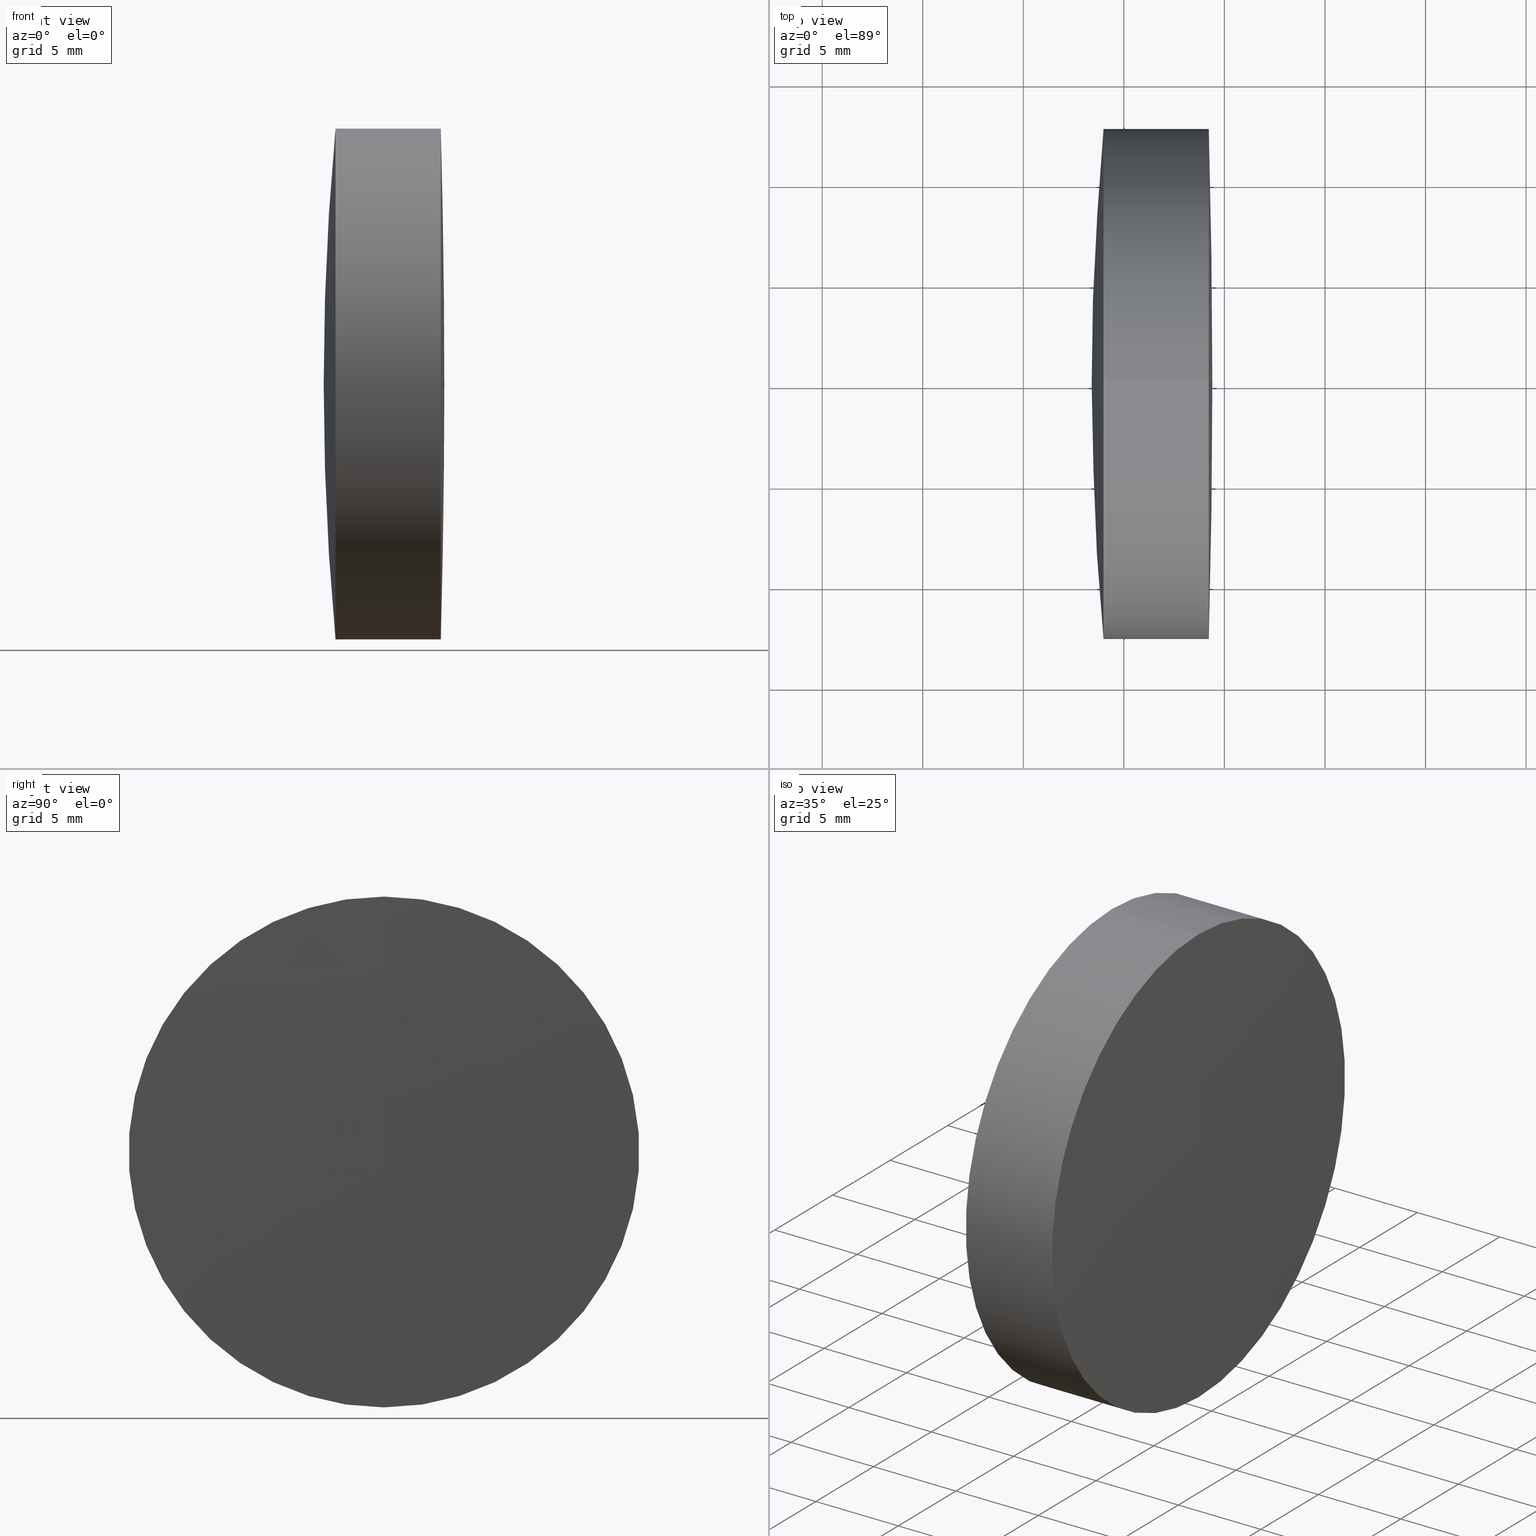
[diagram: canonical four-view strip — front | top / right | iso, engineering-drawing reading convention]
A machine part, canonical four-view strip (front | top / right | iso — engineering-drawing reading convention). The complete STEP part file that produces these views, byte-faithful:
ISO-10303-21;
HEADER;
FILE_DESCRIPTION (( 'STEP AP214' ),
    '1' );
FILE_NAME ('145062.STEP',
    '2019-05-14T05:37:43',
    ( 'user' ),
    ( '΢���й�' ),
    'SwSTEP 2.0',
    'SolidWorks 2016',
    '' );
FILE_SCHEMA (( 'AUTOMOTIVE_DESIGN' ));
ENDSEC;

DATA;
#1 = DIRECTION ( 'NONE',  ( 0.0000000000000000000, 0.0000000000000000000, 1.000000000000000000 ) ) ;
#2 = AXIS2_PLACEMENT_3D ( 'NONE', #239, #236, #271 ) ;
#3 = ADVANCED_FACE ( 'NONE', ( #285 ), #248, .T. ) ;
#4 = PRODUCT_CONTEXT ( 'NONE', #130, 'mechanical' ) ;
#5 = SURFACE_STYLE_FILL_AREA ( #252 ) ;
#6 = FACE_OUTER_BOUND ( 'NONE', #336, .T. ) ;
#7 = ORIENTED_EDGE ( 'NONE', *, *, #290, .T. ) ;
#8 = EDGE_CURVE ( 'NONE', #158, #92, #53, .T. ) ;
#9 = AXIS2_PLACEMENT_3D ( 'NONE', #260, #322, #71 ) ;
#10 = ADVANCED_FACE ( 'NONE', ( #230 ), #175, .T. ) ;
#11 = PRODUCT_DEFINITION_SHAPE ( 'NONE', 'NONE',  #207 ) ;
#12 = EDGE_CURVE ( 'NONE', #281, #100, #332, .T. ) ;
#13 = CARTESIAN_POINT ( 'NONE',  ( 0.0000000000000000000, 0.0000000000000000000, 0.0000000000000000000 ) ) ;
#14 = CARTESIAN_POINT ( 'NONE',  ( 180.8994475431023300, 0.0000000000000000000, -2.331420943353962200E-015 ) ) ;
#15 = DIRECTION ( 'NONE',  ( 0.0000000000000000000, 0.0000000000000000000, 1.000000000000000000 ) ) ;
#16 = AXIS2_PLACEMENT_3D ( 'NONE', #291, #114, #89 ) ;
#17 = CARTESIAN_POINT ( 'NONE',  ( 292.3994475431023300, 0.0000000000000000000, 4.495984961892529400E-015 ) ) ;
#18 = STYLED_ITEM ( 'NONE', ( #98 ), #278 ) ;
#19 = CYLINDRICAL_SURFACE ( 'NONE', #170, 12.69999999999999600 ) ;
#20 = DIRECTION ( 'NONE',  ( -1.000000000000000000, -0.0000000000000000000, -0.0000000000000000000 ) ) ;
#21 = ADVANCED_FACE ( 'NONE', ( #347 ), #19, .T. ) ;
#22 = MANIFOLD_SOLID_BREP ( '��ת1', #329 ) ;
#23 =( LENGTH_UNIT ( ) NAMED_UNIT ( * ) SI_UNIT ( .MILLI., .METRE. ) );
#24 = AXIS2_PLACEMENT_3D ( 'NONE', #231, #254, #183 ) ;
#25 = VECTOR ( 'NONE', #318, 1000.000000000000000 ) ;
#26 = DIRECTION ( 'NONE',  ( -0.0000000000000000000, 1.000000000000000000, 1.224646799147353200E-016 ) ) ;
#27 = SURFACE_SIDE_STYLE ('',( #263 ) ) ;
#28 = CARTESIAN_POINT ( 'NONE',  ( -164.8005524568976600, 0.0000000000000000000, 0.0000000000000000000 ) ) ;
#29 = COLOUR_RGB ( '',1.000000000000000000, 1.000000000000000000, 1.000000000000000000 ) ;
#30 = AXIS2_PLACEMENT_3D ( 'NONE', #61, #312, #310 ) ;
#31 = EDGE_CURVE ( 'NONE', #199, #324, #153, .T. ) ;
#32 = CIRCLE ( 'NONE', #69, 12.69999999999999400 ) ;
#33 = PRESENTATION_STYLE_ASSIGNMENT (( #112 ) ) ;
#34 = CIRCLE ( 'NONE', #2, 111.4999999999999600 ) ;
#35 = ORIENTED_EDGE ( 'NONE', *, *, #165, .T. ) ;
#36 = EDGE_LOOP ( 'NONE', ( #146, #7, #38 ) ) ;
#37 = DIRECTION ( 'NONE',  ( -1.000000000000000000, -0.0000000000000000000, -0.0000000000000000000 ) ) ;
#38 = ORIENTED_EDGE ( 'NONE', *, *, #144, .T. ) ;
#39 = AXIS2_PLACEMENT_3D ( 'NONE', #131, #320, #42 ) ;
#40 = FILL_AREA_STYLE_COLOUR ( '', #60 ) ;
#41 = CARTESIAN_POINT ( 'NONE',  ( 294.2237933026709700, 0.0000000000000000000, 0.0000000000000000000 ) ) ;
#42 = DIRECTION ( 'NONE',  ( 0.0000000000000000000, 0.0000000000000000000, 1.000000000000000000 ) ) ;
#43 = MANIFOLD_SOLID_BREP ( '��ת3', #67 ) ;
#44 = SURFACE_SIDE_STYLE ('',( #5 ) ) ;
#45 = EDGE_CURVE ( 'NONE', #224, #169, #256, .T. ) ;
#46 =( NAMED_UNIT ( * ) PLANE_ANGLE_UNIT ( ) SI_UNIT ( $, .RADIAN. ) );
#47 = CARTESIAN_POINT ( 'NONE',  ( 291.6738128087178000, 0.0000000000000000000, 0.0000000000000000000 ) ) ;
#48 = ORIENTED_EDGE ( 'NONE', *, *, #52, .T. ) ;
#49 = SURFACE_SIDE_STYLE ('',( #50 ) ) ;
#50 = SURFACE_STYLE_FILL_AREA ( #117 ) ;
#51 = PRODUCT_DEFINITION_FORMATION_WITH_SPECIFIED_SOURCE ( '�κ�', '', #152, .NOT_KNOWN. ) ;
#52 = EDGE_CURVE ( 'NONE', #158, #199, #299, .T. ) ;
#53 = CIRCLE ( 'NONE', #331, 12.69999999999995500 ) ;
#54 = DIRECTION ( 'NONE',  ( 0.0000000000000000000, -1.000000000000000000, 0.0000000000000000000 ) ) ;
#55 = ORIENTED_EDGE ( 'NONE', *, *, #122, .T. ) ;
#56 = CIRCLE ( 'NONE', #110, 111.4999999999999600 ) ;
#57 = CARTESIAN_POINT ( 'NONE',  ( 180.8994475431023300, 0.0000000000000000000, -2.331420943353962200E-015 ) ) ;
#58 =( NAMED_UNIT ( * ) SI_UNIT ( $, .STERADIAN. ) SOLID_ANGLE_UNIT ( ) );
#59 =( NAMED_UNIT ( * ) PLANE_ANGLE_UNIT ( ) SI_UNIT ( $, .RADIAN. ) );
#60 = COLOUR_RGB ( '',1.000000000000000000, 1.000000000000000000, 1.000000000000000000 ) ;
#61 = CARTESIAN_POINT ( 'NONE',  ( -164.8005524568976600, 0.0000000000000000000, 0.0000000000000000000 ) ) ;
#62 = VERTEX_POINT ( 'NONE', #145 ) ;
#63 = CIRCLE ( 'NONE', #173, 12.69999999999999600 ) ;
#64 = UNCERTAINTY_MEASURE_WITH_UNIT (LENGTH_MEASURE( 1.000000000000000100E-005 ), #197, 'distance_accuracy_value', 'NONE');
#65 = ORIENTED_EDGE ( 'NONE', *, *, #45, .T. ) ;
#66 = EDGE_CURVE ( 'NONE', #255, #158, #345, .T. ) ;
#67 = CLOSED_SHELL ( 'NONE', ( #167, #272, #149, #104, #297, #3 ) ) ;
#68 = DIRECTION ( 'NONE',  ( 0.0000000000000000000, 0.0000000000000000000, 1.000000000000000000 ) ) ;
#69 = AXIS2_PLACEMENT_3D ( 'NONE', #137, #20, #340 ) ;
#70 = CARTESIAN_POINT ( 'NONE',  ( 291.6738128087178000, 0.0000000000000000000, 12.69999999999999400 ) ) ;
#71 = DIRECTION ( 'NONE',  ( 0.0000000000000000000, 0.0000000000000000000, 1.000000000000000000 ) ) ;
#72 =( NAMED_UNIT ( * ) SI_UNIT ( $, .STERADIAN. ) SOLID_ANGLE_UNIT ( ) );
#73 = ORIENTED_EDGE ( 'NONE', *, *, #52, .F. ) ;
#74 = AXIS2_PLACEMENT_3D ( 'NONE', #223, #26, #216 ) ;
#75 = CARTESIAN_POINT ( 'NONE',  ( 291.6738128087178000, 0.0000000000000000000, 12.69999999999998700 ) ) ;
#76 = EDGE_CURVE ( 'NONE', #262, #169, #233, .T. ) ;
#77 = EDGE_LOOP ( 'NONE', ( #95, #35, #237, #188 ) ) ;
#78 = APPLICATION_PROTOCOL_DEFINITION ( 'draft international standard', 'automotive_design', 1998, #82 ) ;
#79 = AXIS2_PLACEMENT_3D ( 'NONE', #88, #228, #171 ) ;
#80 = ORIENTED_EDGE ( 'NONE', *, *, #276, .T. ) ;
#81 = CARTESIAN_POINT ( 'NONE',  ( 425.4994475431022900, 0.0000000000000000000, -3.630634082691148100E-015 ) ) ;
#82 = APPLICATION_CONTEXT ( 'automotive_design' ) ;
#83 = MECHANICAL_DESIGN_GEOMETRIC_PRESENTATION_REPRESENTATION (  '', ( #18 ), #113 ) ;
#84 = CARTESIAN_POINT ( 'NONE',  ( 288.9889351273912400, 0.0000000000000000000, 12.69999999999995700 ) ) ;
#85 = ORIENTED_EDGE ( 'NONE', *, *, #122, .F. ) ;
#86 = DIRECTION ( 'NONE',  ( 0.0000000000000000000, 1.000000000000000000, 0.0000000000000000000 ) ) ;
#87 =( GEOMETRIC_REPRESENTATION_CONTEXT ( 3 ) GLOBAL_UNCERTAINTY_ASSIGNED_CONTEXT ( ( #218 ) ) GLOBAL_UNIT_ASSIGNED_CONTEXT ( ( #23, #182, #72 ) ) REPRESENTATION_CONTEXT ( 'NONE', 'WORKASPACE' ) );
#88 = CARTESIAN_POINT ( 'NONE',  ( 425.4994475431022900, 0.0000000000000000000, -3.630634082691148100E-015 ) ) ;
#89 = DIRECTION ( 'NONE',  ( 0.0000000000000000000, 0.0000000000000000000, -1.000000000000000000 ) ) ;
#90 = STYLED_ITEM ( 'NONE', ( #33 ), #22 ) ;
#91 = CARTESIAN_POINT ( 'NONE',  ( 180.8994475431023300, 0.0000000000000000000, -2.331420943353962200E-015 ) ) ;
#92 = VERTEX_POINT ( 'NONE', #108 ) ;
#93 = LINE ( 'NONE', #344, #25 ) ;
#94 = EDGE_CURVE ( 'NONE', #281, #62, #219, .T. ) ;
#95 = ORIENTED_EDGE ( 'NONE', *, *, #189, .F. ) ;
#96 = EDGE_CURVE ( 'NONE', #262, #281, #229, .T. ) ;
#97 = ORIENTED_EDGE ( 'NONE', *, *, #12, .T. ) ;
#98 = PRESENTATION_STYLE_ASSIGNMENT (( #266 ) ) ;
#99 = DIRECTION ( 'NONE',  ( 0.0000000000000000000, 0.0000000000000000000, 1.000000000000000000 ) ) ;
#100 = VERTEX_POINT ( 'NONE', #257 ) ;
#101 = CYLINDRICAL_SURFACE ( 'NONE', #24, 12.69999999999999600 ) ;
#102 = PRESENTATION_LAYER_ASSIGNMENT (  '', '', ( #154 ) ) ;
#103 = ORIENTED_EDGE ( 'NONE', *, *, #12, .F. ) ;
#104 = ADVANCED_FACE ( 'NONE', ( #302 ), #283, .F. ) ;
#105 =( GEOMETRIC_REPRESENTATION_CONTEXT ( 3 ) GLOBAL_UNCERTAINTY_ASSIGNED_CONTEXT ( ( #64 ) ) GLOBAL_UNIT_ASSIGNED_CONTEXT ( ( #197, #59, #118 ) ) REPRESENTATION_CONTEXT ( 'NONE', 'WORKASPACE' ) );
#106 = CARTESIAN_POINT ( 'NONE',  ( 180.8994475431023300, 0.0000000000000000000, -2.331420943353962200E-015 ) ) ;
#107 = EDGE_LOOP ( 'NONE', ( #121, #65, #300 ) ) ;
#108 = CARTESIAN_POINT ( 'NONE',  ( 294.2237933026709700, 0.0000000000000000000, 12.69999999999995500 ) ) ;
#109 = ORIENTED_EDGE ( 'NONE', *, *, #66, .T. ) ;
#110 = AXIS2_PLACEMENT_3D ( 'NONE', #343, #54, #136 ) ;
#111 = CYLINDRICAL_SURFACE ( 'NONE', #314, 12.69999999999997100 ) ;
#112 = SURFACE_STYLE_USAGE ( .BOTH. , #49 ) ;
#113 =( GEOMETRIC_REPRESENTATION_CONTEXT ( 3 ) GLOBAL_UNCERTAINTY_ASSIGNED_CONTEXT ( ( #286 ) ) GLOBAL_UNIT_ASSIGNED_CONTEXT ( ( #150, #187, #58 ) ) REPRESENTATION_CONTEXT ( 'NONE', 'WORKASPACE' ) );
#114 = DIRECTION ( 'NONE',  ( 0.0000000000000000000, -1.000000000000000000, 0.0000000000000000000 ) ) ;
#115 = ORIENTED_EDGE ( 'NONE', *, *, #249, .T. ) ;
#116 = ADVANCED_FACE ( 'NONE', ( #147 ), #126, .T. ) ;
#117 = FILL_AREA_STYLE ('',( #132 ) ) ;
#118 =( NAMED_UNIT ( * ) SI_UNIT ( $, .STERADIAN. ) SOLID_ANGLE_UNIT ( ) );
#119 = AXIS2_PLACEMENT_3D ( 'NONE', #106, #141, #241 ) ;
#120 = DIRECTION ( 'NONE',  ( 0.0000000000000000000, 0.0000000000000000000, 1.000000000000000000 ) ) ;
#121 = ORIENTED_EDGE ( 'NONE', *, *, #339, .F. ) ;
#122 = EDGE_CURVE ( 'NONE', #255, #92, #325, .T. ) ;
#123 = DIRECTION ( 'NONE',  ( 1.000000000000000000, 0.0000000000000000000, 0.0000000000000000000 ) ) ;
#124 = EDGE_LOOP ( 'NONE', ( #270, #80, #97 ) ) ;
#125 = FACE_OUTER_BOUND ( 'NONE', #107, .T. ) ;
#126 = SPHERICAL_SURFACE ( 'NONE', #298, 137.0999999999999900 ) ;
#127 = FACE_OUTER_BOUND ( 'NONE', #264, .T. ) ;
#128 = CARTESIAN_POINT ( 'NONE',  ( -164.8005524568976600, 0.0000000000000000000, 0.0000000000000000000 ) ) ;
#129 = DIRECTION ( 'NONE',  ( 0.0000000000000000000, 0.0000000000000000000, 1.000000000000000000 ) ) ;
#130 = APPLICATION_CONTEXT ( 'automotive_design' ) ;
#131 = CARTESIAN_POINT ( 'NONE',  ( 291.6738128087178000, 0.0000000000000000000, 0.0000000000000000000 ) ) ;
#132 = FILL_AREA_STYLE_COLOUR ( '', #29 ) ;
#133 = ORIENTED_EDGE ( 'NONE', *, *, #339, .T. ) ;
#134 = DIRECTION ( 'NONE',  ( -1.000000000000000000, -0.0000000000000000000, -0.0000000000000000000 ) ) ;
#135 = ORIENTED_EDGE ( 'NONE', *, *, #221, .T. ) ;
#136 = DIRECTION ( 'NONE',  ( 0.0000000000000000000, 0.0000000000000000000, -1.000000000000000000 ) ) ;
#137 = CARTESIAN_POINT ( 'NONE',  ( 291.6738128087178000, 0.0000000000000000000, 0.0000000000000000000 ) ) ;
#138 = CARTESIAN_POINT ( 'NONE',  ( -0.5519199926577972300, 0.0000000000000000000, 0.0000000000000000000 ) ) ;
#139 = VECTOR ( 'NONE', #190, 1000.000000000000000 ) ;
#140 = CARTESIAN_POINT ( 'NONE',  ( 294.3994475431023300, 0.0000000000000000000, 2.811789050842323200E-014 ) ) ;
#141 = DIRECTION ( 'NONE',  ( -0.0000000000000000000, 1.000000000000000000, 1.224646799147353200E-016 ) ) ;
#142 = DIRECTION ( 'NONE',  ( -1.000000000000000000, -0.0000000000000000000, -0.0000000000000000000 ) ) ;
#143 = DIRECTION ( 'NONE',  ( 0.0000000000000000000, 0.0000000000000000000, 1.000000000000000000 ) ) ;
#144 = EDGE_CURVE ( 'NONE', #324, #199, #225, .T. ) ;
#145 = CARTESIAN_POINT ( 'NONE',  ( 288.9889351273912400, 1.555301434917133100E-015, -12.69999999999996000 ) ) ;
#146 = ORIENTED_EDGE ( 'NONE', *, *, #335, .F. ) ;
#147 = FACE_OUTER_BOUND ( 'NONE', #124, .T. ) ;
#148 = EDGE_LOOP ( 'NONE', ( #342, #135, #103 ) ) ;
#149 = ADVANCED_FACE ( 'NONE', ( #201 ), #261, .F. ) ;
#150 =( LENGTH_UNIT ( ) NAMED_UNIT ( * ) SI_UNIT ( .MILLI., .METRE. ) );
#151 = AXIS2_PLACEMENT_3D ( 'NONE', #292, #134, #243 ) ;
#152 = PRODUCT ( '145062', '145062', '', ( #4 ) ) ;
#153 = CIRCLE ( 'NONE', #301, 12.69999999999998900 ) ;
#154 = STYLED_ITEM ( 'NONE', ( #308 ), #43 ) ;
#155 = FACE_OUTER_BOUND ( 'NONE', #215, .T. ) ;
#156 = EDGE_LOOP ( 'NONE', ( #267, #191, #157 ) ) ;
#157 = ORIENTED_EDGE ( 'NONE', *, *, #31, .T. ) ;
#158 = VERTEX_POINT ( 'NONE', #196 ) ;
#159 = SPHERICAL_SURFACE ( 'NONE', #280, 111.4999999999999600 ) ;
#160 = CARTESIAN_POINT ( 'NONE',  ( 235.8074506907544200, 1.555301434917138000E-015, -12.69999999999999600 ) ) ;
#161 = DIRECTION ( 'NONE',  ( 0.0000000000000000000, 0.0000000000000000000, 1.000000000000000000 ) ) ;
#162 = MECHANICAL_DESIGN_GEOMETRIC_PRESENTATION_REPRESENTATION (  '', ( #154 ), #87 ) ;
#163 = DIRECTION ( 'NONE',  ( 0.0000000000000000000, -1.000000000000000000, 0.0000000000000000000 ) ) ;
#164 = DIRECTION ( 'NONE',  ( 0.0000000000000000000, 0.0000000000000000000, 1.000000000000000000 ) ) ;
#165 = EDGE_CURVE ( 'NONE', #169, #262, #32, .T. ) ;
#166 = UNCERTAINTY_MEASURE_WITH_UNIT (LENGTH_MEASURE( 1.000000000000000100E-005 ), #200, 'distance_accuracy_value', 'NONE');
#167 = ADVANCED_FACE ( 'NONE', ( #155 ), #295, .T. ) ;
#168 = FILL_AREA_STYLE_COLOUR ( '', #319 ) ;
#169 = VERTEX_POINT ( 'NONE', #250 ) ;
#170 = AXIS2_PLACEMENT_3D ( 'NONE', #337, #142, #214 ) ;
#171 = DIRECTION ( 'NONE',  ( 0.0000000000000000000, -1.224646799147353200E-016, 1.000000000000000000 ) ) ;
#172 = CARTESIAN_POINT ( 'NONE',  ( 292.3994475431023300, 0.0000000000000000000, 4.495984961892529400E-015 ) ) ;
#173 = AXIS2_PLACEMENT_3D ( 'NONE', #194, #259, #68 ) ;
#174 = CARTESIAN_POINT ( 'NONE',  ( 425.4994475431022900, 0.0000000000000000000, -3.630634082691148100E-015 ) ) ;
#175 = SPHERICAL_SURFACE ( 'NONE', #198, 111.4999999999999600 ) ;
#176 = ORIENTED_EDGE ( 'NONE', *, *, #202, .T. ) ;
#177 = SHAPE_DEFINITION_REPRESENTATION ( #11, #278 ) ;
#178 = ORIENTED_EDGE ( 'NONE', *, *, #202, .F. ) ;
#179 = AXIS2_PLACEMENT_3D ( 'NONE', #138, #234, #15 ) ;
#180 = ORIENTED_EDGE ( 'NONE', *, *, #31, .F. ) ;
#181 = EDGE_LOOP ( 'NONE', ( #311, #232, #206, #211 ) ) ;
#182 =( NAMED_UNIT ( * ) PLANE_ANGLE_UNIT ( ) SI_UNIT ( $, .RADIAN. ) );
#183 = DIRECTION ( 'NONE',  ( 0.0000000000000000000, 0.0000000000000000000, 1.000000000000000000 ) ) ;
#184 = DIRECTION ( 'NONE',  ( 0.0000000000000000000, 0.0000000000000000000, 1.000000000000000000 ) ) ;
#185 = DIRECTION ( 'NONE',  ( 0.0000000000000000000, 0.0000000000000000000, 1.000000000000000000 ) ) ;
#186 = AXIS2_PLACEMENT_3D ( 'NONE', #13, #143, #123 ) ;
#187 =( NAMED_UNIT ( * ) PLANE_ANGLE_UNIT ( ) SI_UNIT ( $, .RADIAN. ) );
#188 = ORIENTED_EDGE ( 'NONE', *, *, #276, .F. ) ;
#189 = EDGE_CURVE ( 'NONE', #169, #62, #220, .T. ) ;
#190 = DIRECTION ( 'NONE',  ( -1.000000000000000000, -0.0000000000000000000, -0.0000000000000000000 ) ) ;
#191 = ORIENTED_EDGE ( 'NONE', *, *, #335, .T. ) ;
#192 = DIRECTION ( 'NONE',  ( -1.000000000000000000, -0.0000000000000000000, -0.0000000000000000000 ) ) ;
#193 = DIRECTION ( 'NONE',  ( -1.000000000000000000, -0.0000000000000000000, -0.0000000000000000000 ) ) ;
#194 = CARTESIAN_POINT ( 'NONE',  ( 288.9889351273912400, 0.0000000000000000000, 0.0000000000000000000 ) ) ;
#195 = ORIENTED_EDGE ( 'NONE', *, *, #144, .F. ) ;
#196 = CARTESIAN_POINT ( 'NONE',  ( 294.2237933026709700, 1.555301434917134100E-015, -12.69999999999995500 ) ) ;
#197 =( LENGTH_UNIT ( ) NAMED_UNIT ( * ) SI_UNIT ( .MILLI., .METRE. ) );
#198 = AXIS2_PLACEMENT_3D ( 'NONE', #14, #238, #164 ) ;
#199 = VERTEX_POINT ( 'NONE', #293 ) ;
#200 =( LENGTH_UNIT ( ) NAMED_UNIT ( * ) SI_UNIT ( .MILLI., .METRE. ) );
#201 = FACE_OUTER_BOUND ( 'NONE', #156, .T. ) ;
#202 = EDGE_CURVE ( 'NONE', #92, #324, #93, .T. ) ;
#203 = VECTOR ( 'NONE', #277, 1000.000000000000000 ) ;
#204 = FACE_OUTER_BOUND ( 'NONE', #77, .T. ) ;
#205 = PRODUCT_DEFINITION_CONTEXT ( 'detailed design', #82, 'design' ) ;
#206 = ORIENTED_EDGE ( 'NONE', *, *, #94, .F. ) ;
#207 = PRODUCT_DEFINITION ( 'δ֪', '', #51, #205 ) ;
#208 = DIRECTION ( 'NONE',  ( 0.0000000000000000000, 1.000000000000000000, 0.0000000000000000000 ) ) ;
#209 = MECHANICAL_DESIGN_GEOMETRIC_PRESENTATION_REPRESENTATION (  '', ( #90 ), #105 ) ;
#210 = CARTESIAN_POINT ( 'NONE',  ( 294.2237933026709700, 0.0000000000000000000, 0.0000000000000000000 ) ) ;
#211 = ORIENTED_EDGE ( 'NONE', *, *, #96, .F. ) ;
#212 = APPLICATION_PROTOCOL_DEFINITION ( 'draft international standard', 'automotive_design', 1998, #130 ) ;
#213 = AXIS2_PLACEMENT_3D ( 'NONE', #28, #86, #184 ) ;
#214 = DIRECTION ( 'NONE',  ( 0.0000000000000000000, 0.0000000000000000000, 1.000000000000000000 ) ) ;
#215 = EDGE_LOOP ( 'NONE', ( #85, #109, #321 ) ) ;
#216 = DIRECTION ( 'NONE',  ( 0.0000000000000000000, -1.224646799147353200E-016, 1.000000000000000000 ) ) ;
#217 = AXIS2_PLACEMENT_3D ( 'NONE', #91, #247, #161 ) ;
#218 = UNCERTAINTY_MEASURE_WITH_UNIT (LENGTH_MEASURE( 1.000000000000000100E-005 ), #23, 'distance_accuracy_value', 'NONE');
#219 = CIRCLE ( 'NONE', #151, 12.69999999999999600 ) ;
#220 = LINE ( 'NONE', #160, #327 ) ;
#221 = EDGE_CURVE ( 'NONE', #62, #100, #303, .T. ) ;
#222 = FILL_AREA_STYLE ('',( #168 ) ) ;
#223 = CARTESIAN_POINT ( 'NONE',  ( 180.8994475431023300, 0.0000000000000000000, -2.331420943353962200E-015 ) ) ;
#224 = VERTEX_POINT ( 'NONE', #17 ) ;
#225 = CIRCLE ( 'NONE', #39, 12.69999999999998900 ) ;
#226 = PRESENTATION_LAYER_ASSIGNMENT (  '', '', ( #18 ) ) ;
#227 = DIRECTION ( 'NONE',  ( -1.000000000000000000, -0.0000000000000000000, -0.0000000000000000000 ) ) ;
#228 = DIRECTION ( 'NONE',  ( -0.0000000000000000000, 1.000000000000000000, 1.224646799147353200E-016 ) ) ;
#229 = LINE ( 'NONE', #323, #203 ) ;
#230 = FACE_OUTER_BOUND ( 'NONE', #235, .T. ) ;
#231 = CARTESIAN_POINT ( 'NONE',  ( 235.8074506907544200, 0.0000000000000000000, 0.0000000000000000000 ) ) ;
#232 = ORIENTED_EDGE ( 'NONE', *, *, #189, .T. ) ;
#233 = CIRCLE ( 'NONE', #9, 12.69999999999999400 ) ;
#234 = DIRECTION ( 'NONE',  ( -1.000000000000000000, -0.0000000000000000000, -0.0000000000000000000 ) ) ;
#235 = EDGE_LOOP ( 'NONE', ( #268, #133, #315 ) ) ;
#236 = DIRECTION ( 'NONE',  ( 0.0000000000000000000, -1.000000000000000000, 0.0000000000000000000 ) ) ;
#237 = ORIENTED_EDGE ( 'NONE', *, *, #96, .T. ) ;
#238 = DIRECTION ( 'NONE',  ( 0.0000000000000000000, 1.000000000000000000, 0.0000000000000000000 ) ) ;
#239 = CARTESIAN_POINT ( 'NONE',  ( 180.8994475431023300, 0.0000000000000000000, -2.331420943353962200E-015 ) ) ;
#240 = VERTEX_POINT ( 'NONE', #172 ) ;
#241 = DIRECTION ( 'NONE',  ( 0.0000000000000000000, -1.224646799147353200E-016, 1.000000000000000000 ) ) ;
#242 = CYLINDRICAL_SURFACE ( 'NONE', #179, 12.69999999999997100 ) ;
#243 = DIRECTION ( 'NONE',  ( 0.0000000000000000000, 0.0000000000000000000, 1.000000000000000000 ) ) ;
#244 = AXIS2_PLACEMENT_3D ( 'NONE', #81, #208, #326 ) ;
#245 = CARTESIAN_POINT ( 'NONE',  ( -0.5519199926577972300, 1.555301434917135100E-015, -12.69999999999997100 ) ) ;
#246 = CARTESIAN_POINT ( 'NONE',  ( 180.8994475431023300, 0.0000000000000000000, -2.331420943353962200E-015 ) ) ;
#247 = DIRECTION ( 'NONE',  ( 0.0000000000000000000, 1.000000000000000000, 0.0000000000000000000 ) ) ;
#248 = SPHERICAL_SURFACE ( 'NONE', #287, 459.1999999999999900 ) ;
#249 = EDGE_CURVE ( 'NONE', #92, #158, #333, .T. ) ;
#250 = CARTESIAN_POINT ( 'NONE',  ( 291.6738128087178000, 1.555301434917138000E-015, -12.69999999999999400 ) ) ;
#251 = ORIENTED_EDGE ( 'NONE', *, *, #8, .F. ) ;
#252 = FILL_AREA_STYLE ('',( #40 ) ) ;
#253 = DIRECTION ( 'NONE',  ( 0.0000000000000000000, 1.000000000000000000, 0.0000000000000000000 ) ) ;
#254 = DIRECTION ( 'NONE',  ( -1.000000000000000000, -0.0000000000000000000, -0.0000000000000000000 ) ) ;
#255 = VERTEX_POINT ( 'NONE', #140 ) ;
#256 = CIRCLE ( 'NONE', #74, 111.4999999999999600 ) ;
#257 = CARTESIAN_POINT ( 'NONE',  ( 288.3994475431023300, 0.0000000000000000000, 4.764319725463957600E-015 ) ) ;
#258 = DIRECTION ( 'NONE',  ( 0.0000000000000000000, 0.0000000000000000000, 1.000000000000000000 ) ) ;
#259 = DIRECTION ( 'NONE',  ( -1.000000000000000000, -0.0000000000000000000, -0.0000000000000000000 ) ) ;
#260 = CARTESIAN_POINT ( 'NONE',  ( 291.6738128087178000, 0.0000000000000000000, 0.0000000000000000000 ) ) ;
#261 = SPHERICAL_SURFACE ( 'NONE', #341, 111.4999999999999600 ) ;
#262 = VERTEX_POINT ( 'NONE', #70 ) ;
#263 = SURFACE_STYLE_FILL_AREA ( #222 ) ;
#264 = EDGE_LOOP ( 'NONE', ( #115, #48, #195, #178 ) ) ;
#265 = AXIS2_PLACEMENT_3D ( 'NONE', #174, #163, #282 ) ;
#266 = SURFACE_STYLE_USAGE ( .BOTH. , #27 ) ;
#267 = ORIENTED_EDGE ( 'NONE', *, *, #290, .F. ) ;
#268 = ORIENTED_EDGE ( 'NONE', *, *, #45, .F. ) ;
#269 =( GEOMETRIC_REPRESENTATION_CONTEXT ( 3 ) GLOBAL_UNCERTAINTY_ASSIGNED_CONTEXT ( ( #166 ) ) GLOBAL_UNIT_ASSIGNED_CONTEXT ( ( #200, #46, #307 ) ) REPRESENTATION_CONTEXT ( 'NONE', 'WORKASPACE' ) );
#270 = ORIENTED_EDGE ( 'NONE', *, *, #221, .F. ) ;
#271 = DIRECTION ( 'NONE',  ( 0.0000000000000000000, 0.0000000000000000000, -1.000000000000000000 ) ) ;
#272 = ADVANCED_FACE ( 'NONE', ( #127 ), #111, .T. ) ;
#273 = PRODUCT_RELATED_PRODUCT_CATEGORY ( 'part', '', ( #152 ) ) ;
#274 = EDGE_LOOP ( 'NONE', ( #338, #55, #251 ) ) ;
#275 = ADVANCED_FACE ( 'NONE', ( #204 ), #101, .T. ) ;
#276 = EDGE_CURVE ( 'NONE', #62, #281, #63, .T. ) ;
#277 = DIRECTION ( 'NONE',  ( -1.000000000000000000, -0.0000000000000000000, -0.0000000000000000000 ) ) ;
#278 = ADVANCED_BREP_SHAPE_REPRESENTATION ( '145062', ( #22, #43, #186 ), #269 ) ;
#279 = DIRECTION ( 'NONE',  ( 0.0000000000000000000, 0.0000000000000000000, 1.000000000000000000 ) ) ;
#280 = AXIS2_PLACEMENT_3D ( 'NONE', #246, #317, #185 ) ;
#281 = VERTEX_POINT ( 'NONE', #84 ) ;
#282 = DIRECTION ( 'NONE',  ( 0.0000000000000000000, 0.0000000000000000000, -1.000000000000000000 ) ) ;
#283 = SPHERICAL_SURFACE ( 'NONE', #217, 111.4999999999999600 ) ;
#284 = FACE_OUTER_BOUND ( 'NONE', #148, .T. ) ;
#285 = FACE_OUTER_BOUND ( 'NONE', #274, .T. ) ;
#286 = UNCERTAINTY_MEASURE_WITH_UNIT (LENGTH_MEASURE( 1.000000000000000100E-005 ), #150, 'distance_accuracy_value', 'NONE');
#287 = AXIS2_PLACEMENT_3D ( 'NONE', #128, #253, #129 ) ;
#288 = DIRECTION ( 'NONE',  ( 0.0000000000000000000, 1.000000000000000000, 0.0000000000000000000 ) ) ;
#289 = DIRECTION ( 'NONE',  ( -1.000000000000000000, -0.0000000000000000000, -0.0000000000000000000 ) ) ;
#290 = EDGE_CURVE ( 'NONE', #240, #324, #34, .T. ) ;
#291 = CARTESIAN_POINT ( 'NONE',  ( -164.8005524568976600, 0.0000000000000000000, 0.0000000000000000000 ) ) ;
#292 = CARTESIAN_POINT ( 'NONE',  ( 288.9889351273912400, 0.0000000000000000000, 0.0000000000000000000 ) ) ;
#293 = CARTESIAN_POINT ( 'NONE',  ( 291.6738128087178000, 1.555301434917137100E-015, -12.69999999999998900 ) ) ;
#294 = CARTESIAN_POINT ( 'NONE',  ( -0.5519199926577972300, 0.0000000000000000000, 0.0000000000000000000 ) ) ;
#295 = SPHERICAL_SURFACE ( 'NONE', #213, 459.1999999999999900 ) ;
#296 = PRESENTATION_LAYER_ASSIGNMENT (  '', '', ( #90 ) ) ;
#297 = ADVANCED_FACE ( 'NONE', ( #6 ), #242, .T. ) ;
#298 = AXIS2_PLACEMENT_3D ( 'NONE', #334, #288, #120 ) ;
#299 = LINE ( 'NONE', #245, #139 ) ;
#300 = ORIENTED_EDGE ( 'NONE', *, *, #76, .F. ) ;
#301 = AXIS2_PLACEMENT_3D ( 'NONE', #47, #192, #1 ) ;
#302 = FACE_OUTER_BOUND ( 'NONE', #36, .T. ) ;
#303 = CIRCLE ( 'NONE', #79, 137.0999999999999900 ) ;
#304 = AXIS2_PLACEMENT_3D ( 'NONE', #210, #227, #279 ) ;
#305 = ADVANCED_FACE ( 'NONE', ( #284 ), #346, .T. ) ;
#306 = DIRECTION ( 'NONE',  ( 0.0000000000000000000, 0.0000000000000000000, 1.000000000000000000 ) ) ;
#307 =( NAMED_UNIT ( * ) SI_UNIT ( $, .STERADIAN. ) SOLID_ANGLE_UNIT ( ) );
#308 = PRESENTATION_STYLE_ASSIGNMENT (( #313 ) ) ;
#309 = DIRECTION ( 'NONE',  ( 0.0000000000000000000, 1.000000000000000000, 0.0000000000000000000 ) ) ;
#310 = DIRECTION ( 'NONE',  ( 0.0000000000000000000, -1.224646799147353200E-016, 1.000000000000000000 ) ) ;
#311 = ORIENTED_EDGE ( 'NONE', *, *, #76, .T. ) ;
#312 = DIRECTION ( 'NONE',  ( -0.0000000000000000000, 1.000000000000000000, 1.224646799147353200E-016 ) ) ;
#313 = SURFACE_STYLE_USAGE ( .BOTH. , #44 ) ;
#314 = AXIS2_PLACEMENT_3D ( 'NONE', #294, #37, #99 ) ;
#315 = ORIENTED_EDGE ( 'NONE', *, *, #165, .F. ) ;
#316 = CIRCLE ( 'NONE', #119, 111.4999999999999600 ) ;
#317 = DIRECTION ( 'NONE',  ( 0.0000000000000000000, 1.000000000000000000, 0.0000000000000000000 ) ) ;
#318 = DIRECTION ( 'NONE',  ( -1.000000000000000000, -0.0000000000000000000, -0.0000000000000000000 ) ) ;
#319 = COLOUR_RGB ( '',1.000000000000000000, 1.000000000000000000, 1.000000000000000000 ) ;
#320 = DIRECTION ( 'NONE',  ( -1.000000000000000000, -0.0000000000000000000, -0.0000000000000000000 ) ) ;
#321 = ORIENTED_EDGE ( 'NONE', *, *, #249, .F. ) ;
#322 = DIRECTION ( 'NONE',  ( -1.000000000000000000, -0.0000000000000000000, -0.0000000000000000000 ) ) ;
#323 = CARTESIAN_POINT ( 'NONE',  ( 235.8074506907544200, 0.0000000000000000000, 12.69999999999999600 ) ) ;
#324 = VERTEX_POINT ( 'NONE', #75 ) ;
#325 = CIRCLE ( 'NONE', #16, 459.1999999999999900 ) ;
#326 = DIRECTION ( 'NONE',  ( 0.0000000000000000000, 0.0000000000000000000, 1.000000000000000000 ) ) ;
#327 = VECTOR ( 'NONE', #193, 1000.000000000000000 ) ;
#328 = ORIENTED_EDGE ( 'NONE', *, *, #8, .T. ) ;
#329 = CLOSED_SHELL ( 'NONE', ( #330, #21, #305, #116, #275, #10 ) ) ;
#330 = ADVANCED_FACE ( 'NONE', ( #125 ), #159, .T. ) ;
#331 = AXIS2_PLACEMENT_3D ( 'NONE', #41, #289, #306 ) ;
#332 = CIRCLE ( 'NONE', #265, 137.0999999999999900 ) ;
#333 = CIRCLE ( 'NONE', #304, 12.69999999999995500 ) ;
#334 = CARTESIAN_POINT ( 'NONE',  ( 425.4994475431022900, 0.0000000000000000000, -3.630634082691148100E-015 ) ) ;
#335 = EDGE_CURVE ( 'NONE', #240, #199, #316, .T. ) ;
#336 = EDGE_LOOP ( 'NONE', ( #73, #328, #176, #180 ) ) ;
#337 = CARTESIAN_POINT ( 'NONE',  ( 235.8074506907544200, 0.0000000000000000000, 0.0000000000000000000 ) ) ;
#338 = ORIENTED_EDGE ( 'NONE', *, *, #66, .F. ) ;
#339 = EDGE_CURVE ( 'NONE', #224, #262, #56, .T. ) ;
#340 = DIRECTION ( 'NONE',  ( 0.0000000000000000000, 0.0000000000000000000, 1.000000000000000000 ) ) ;
#341 = AXIS2_PLACEMENT_3D ( 'NONE', #57, #309, #258 ) ;
#342 = ORIENTED_EDGE ( 'NONE', *, *, #94, .T. ) ;
#343 = CARTESIAN_POINT ( 'NONE',  ( 180.8994475431023300, 0.0000000000000000000, -2.331420943353962200E-015 ) ) ;
#344 = CARTESIAN_POINT ( 'NONE',  ( -0.5519199926577972300, 0.0000000000000000000, 12.69999999999997100 ) ) ;
#345 = CIRCLE ( 'NONE', #30, 459.1999999999999900 ) ;
#346 = SPHERICAL_SURFACE ( 'NONE', #244, 137.0999999999999900 ) ;
#347 = FACE_OUTER_BOUND ( 'NONE', #181, .T. ) ;
ENDSEC;
END-ISO-10303-21;
